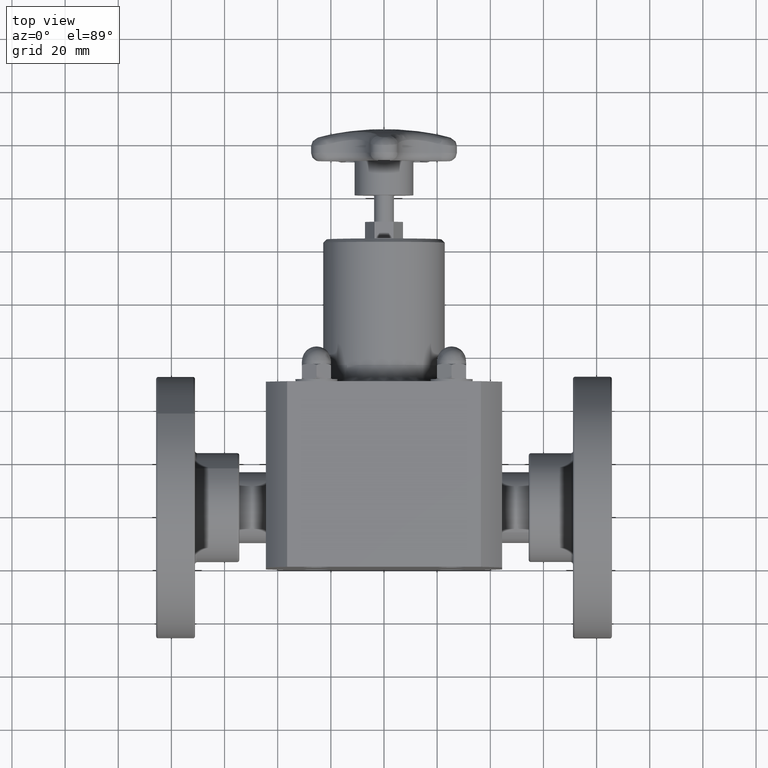
[diagram: clean part render]
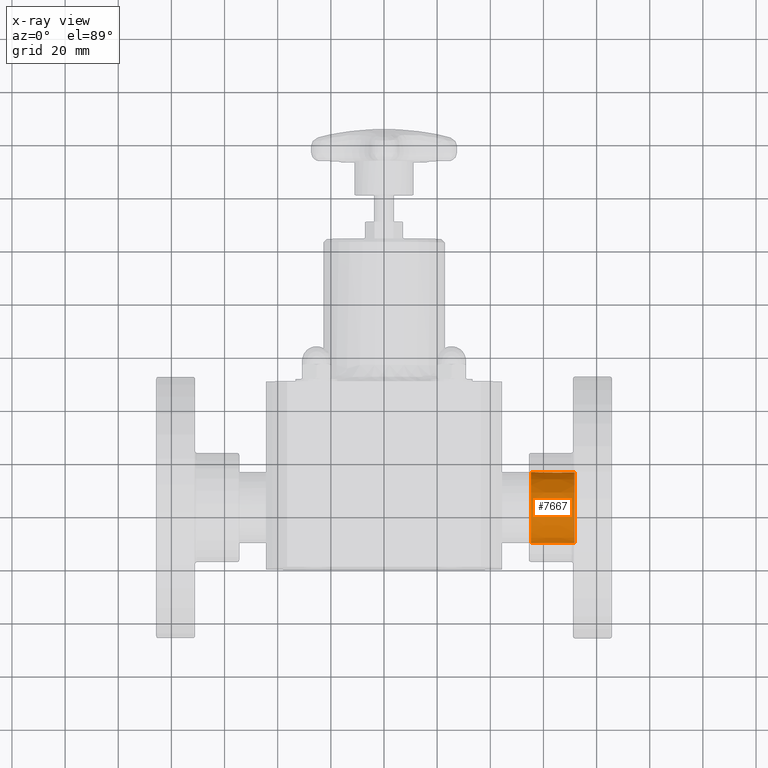
[diagram: x-ray — body ghosted, one internal face saturated and labeled with its STEP entity id]
A machine part, top view, then the same camera in x-ray: the body is ghosted and one INTERNAL B-rep face — a face not visible from any outside direction — is saturated and labeled: STEP entity #7667.
In plain terms, the highlighted conical surface has half-angle 0.337 deg.
Its self-contained STEP definition (entity closure, byte-faithful):
#7269=CARTESIAN_POINT('',(2.825000000000000,0.528768939877065,0.371231060122938));
#7270=VERTEX_POINT('',#7269);
#7271=CARTESIAN_POINT('',(2.825000000000000,0.900000000000002,1.909152E-016));
#7272=DIRECTION('',(1.0,6.833034E-016,-6.833034E-016));
#7273=DIRECTION('',(-9.663369E-016,0.707106781186547,-0.707106781186548));
#7274=AXIS2_PLACEMENT_3D('',#7271,#7272,#7273);
#7275=CIRCLE('',#7274,0.525000000000000);
#7276=EDGE_CURVE('',#7270,#7270,#7275,.T.);
#7644=CARTESIAN_POINT('',(2.174823532464810,1.273935437706243,-0.373935437706242));
#7645=VERTEX_POINT('',#7644);
#7646=CARTESIAN_POINT('',(2.174823532464810,0.900000000000000,1.909536E-015));
#7647=DIRECTION('',(1.0,-8.496505E-016,8.496505E-016));
#7648=DIRECTION('',(-1.201587E-015,-0.707106781186547,0.707106781186548));
#7649=AXIS2_PLACEMENT_3D('',#7646,#7647,#7648);
#7650=CIRCLE('',#7649,0.528824567456089);
#7651=EDGE_CURVE('',#7645,#7645,#7650,.T.);
#7656=CARTESIAN_POINT('',(2.655000000000000,0.899999999999999,2.579778E-015));
#7657=DIRECTION('',(-1.0,2.081070E-016,-1.491194E-015));
#7658=DIRECTION('',(1.201587E-015,0.707106781186547,-0.707106781186548));
#7659=AXIS2_PLACEMENT_3D('',#7656,#7657,#7658);
#7660=CONICAL_SURFACE('',#7659,0.526000000000000,0.337030109857806);
#7661=ORIENTED_EDGE('',*,*,#7276,.T.);
#7662=EDGE_LOOP('',(#7661));
#7663=FACE_OUTER_BOUND('',#7662,.T.);
#7664=ORIENTED_EDGE('',*,*,#7651,.F.);
#7665=EDGE_LOOP('',(#7664));
#7666=FACE_BOUND('',#7665,.T.);
#7667=ADVANCED_FACE('',(#7663,#7666),#7660,.F.);